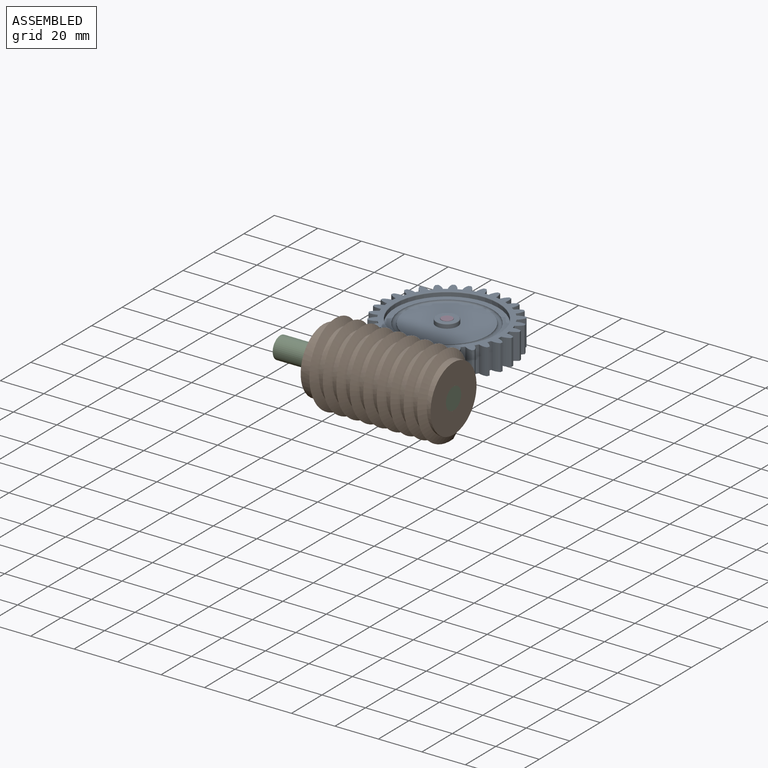
[diagram: assembled view]
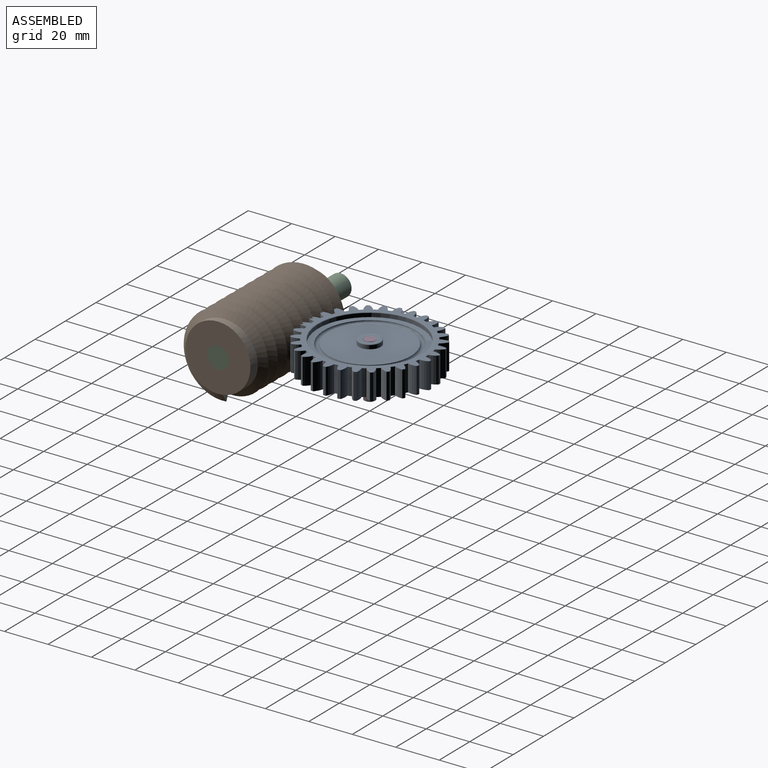
[diagram: assembled view, second angle]
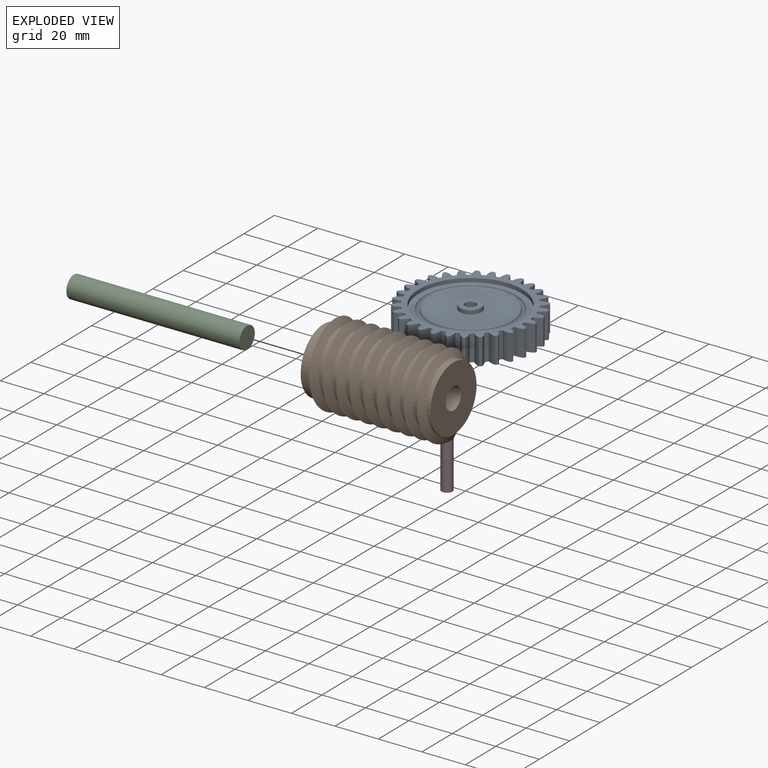
[diagram: exploded view]
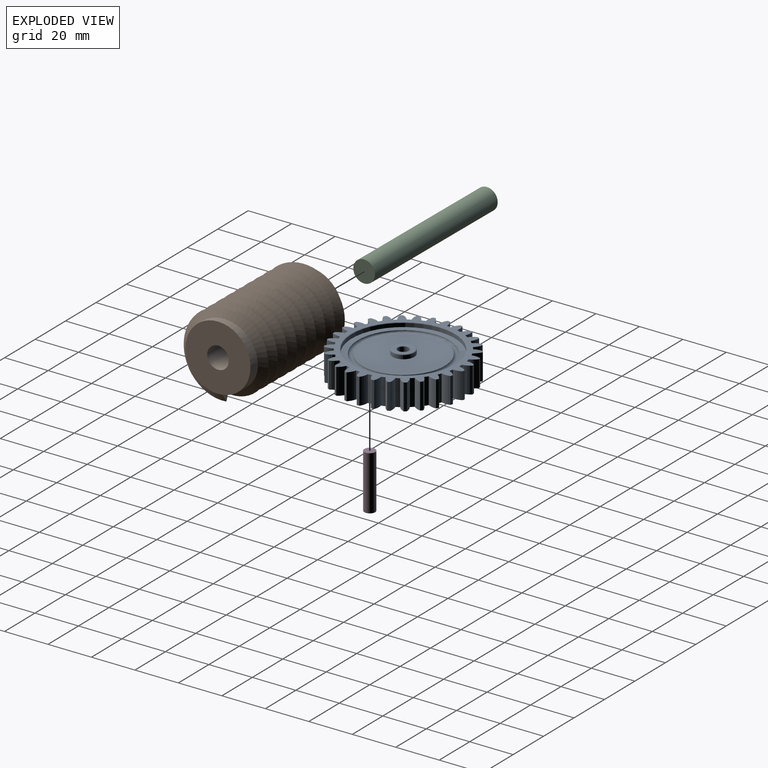
[diagram: exploded view, second angle]
ASSEMBLY  parts=4 mates=2
PART A: 141 faces, bbox 60x60x12 mm
  f0: plane 47.5x47.5mm, normal (0,0,-1), area 386.6mm2, adj f132,f140
  f1: plane 38x38mm, normal (0,0,-1), area 1055.6mm2, adj f131,f140
  f2: plane 47.5x47.5mm, normal (0,0,1), area 386.6mm2, adj f128,f139
  f3: plane 38x38mm, normal (0,0,1), area 1055.6mm2, adj f127,f139
  f4: plane 9.4x9.4mm, normal (0,0,-1), area 44.8mm2, adj f133,f135
  f5: cylinder r=26.25mm len=12mm, axis (0,0,-1), area 22.2mm2, adj f38,f39,f108,f111
  f6: cylinder r=26.25mm len=12mm, axis (0,0,-1), area 22.2mm2, adj f38,f39,f110,f114
  f7: cylinder r=26.25mm len=12mm, axis (0,0,-1), area 22.2mm2, adj f38,f39,f113,f117
  f8: cylinder r=26.25mm len=12mm, axis (0,0,-1), area 22.2mm2, adj f38,f39,f116,f120
  f9: cylinder r=26.25mm len=12mm, axis (0,0,-1), area 22.2mm2, adj f38,f39,f119,f123
  f10: cylinder r=26.25mm len=12mm, axis (0,0,-1), area 22.2mm2, adj f38,f39,f122,f126
  f11: cylinder r=26.25mm len=12mm, axis (0,0,-1), area 22.2mm2, adj f38,f39,f42,f124
  f12: cylinder r=26.25mm len=12mm, axis (0,0,-1), area 22.2mm2, adj f38,f39,f41,f45
  f13: cylinder r=26.25mm len=12mm, axis (0,0,-1), area 22.2mm2, adj f38,f39,f44,f48
  f14: cylinder r=26.25mm len=12mm, axis (0,0,-1), area 22.2mm2, adj f38,f39,f47,f51
  f15: cylinder r=26.25mm len=12mm, axis (0,0,-1), area 22.2mm2, adj f38,f39,f50,f54
  f16: cylinder r=26.25mm len=12mm, axis (0,0,-1), area 22.2mm2, adj f38,f39,f53,f57
  f17: cylinder r=26.25mm len=12mm, axis (0,0,-1), area 22.2mm2, adj f38,f39,f56,f60
  f18: cylinder r=26.25mm len=12mm, axis (0,0,-1), area 22.2mm2, adj f38,f39,f59,f63
  f19: cylinder r=26.25mm len=12mm, axis (0,0,-1), area 22.2mm2, adj f38,f39,f62,f66
  f20: cylinder r=26.25mm len=12mm, axis (0,0,-1), area 22.2mm2, adj f38,f39,f65,f69
  f21: cylinder r=26.25mm len=12mm, axis (0,0,-1), area 22.2mm2, adj f38,f39,f68,f72
  f22: cylinder r=26.25mm len=12mm, axis (0,0,-1), area 22.2mm2, adj f38,f39,f71,f75
  f23: cylinder r=26.25mm len=12mm, axis (0,0,-1), area 22.2mm2, adj f38,f39,f74,f78
  f24: cylinder r=26.25mm len=12mm, axis (0,0,-1), area 22.2mm2, adj f38,f39,f77,f81
  f25: cylinder r=26.25mm len=12mm, axis (0,0,-1), area 22.2mm2, adj f38,f39,f80,f84
  f26: cylinder r=26.25mm len=12mm, axis (0,0,-1), area 22.2mm2, adj f38,f39,f83,f87
  f27: cylinder r=26.25mm len=12mm, axis (0,0,-1), area 22.2mm2, adj f38,f39,f86,f90
  f28: cylinder r=26.25mm len=12mm, axis (0,0,-1), area 22.2mm2, adj f38,f39,f89,f93
  f29: cylinder r=26.25mm len=12mm, axis (0,0,-1), area 22.2mm2, adj f38,f39,f92,f96
  f30: cylinder r=26.25mm len=12mm, axis (0,0,-1), area 22.2mm2, adj f38,f39,f95,f99
  f31: cylinder r=26.25mm len=12mm, axis (0,0,-1), area 22.2mm2, adj f38,f39,f98,f102
  f32: cylinder r=26.25mm len=12mm, axis (0,0,-1), area 22.2mm2, adj f38,f39,f101,f105
  f33: cylinder r=26.25mm len=12mm, axis (0,0,-1), area 22.2mm2, adj f37,f38,f39,f104
  f34: cylinder r=26.25mm len=12mm, axis (0,0,-1), area 22.2mm2, adj f35,f38,f39,f107
  f35: cylinder r=7.05mm len=12mm, axis (0,0,-1), area 48.6mm2, adj f34,f36,f38,f39
  f36: cylinder r=30mm len=12mm, axis (0,0,-1), area 14.5mm2, adj f35,f37,f38,f39
  f37: cylinder r=7.05mm len=12mm, axis (0,0,-1), area 48.6mm2, adj f33,f36,f38,f39
  f38: plane 59.97x59.97mm, normal (0,0,1), area 666.9mm2, adj f5,f6,f7,f8,f9,f10,f11,f12
  f39: plane 59.97x59.97mm, normal (0,0,-1), area 666.9mm2, adj f5,f6,f7,f8,f9,f10,f11,f12
  f40: cylinder r=30mm len=12mm, axis (0,0,-1), area 14.5mm2, adj f38,f39,f41,f42
  f41: cylinder r=7.05mm len=12mm, axis (0,0,-1), area 48.6mm2, adj f12,f38,f39,f40
  f42: cylinder r=7.05mm len=12mm, axis (0,0,-1), area 48.6mm2, adj f11,f38,f39,f40
  f43: cylinder r=30mm len=12mm, axis (0,0,-1), area 14.5mm2, adj f38,f39,f44,f45
  f44: cylinder r=7.05mm len=12mm, axis (0,0,-1), area 48.6mm2, adj f13,f38,f39,f43
  f45: cylinder r=7.05mm len=12mm, axis (0,0,-1), area 48.6mm2, adj f12,f38,f39,f43
  f46: cylinder r=30mm len=12mm, axis (0,0,-1), area 14.5mm2, adj f38,f39,f47,f48
  f47: cylinder r=7.05mm len=12mm, axis (0,0,-1), area 48.6mm2, adj f14,f38,f39,f46
  f48: cylinder r=7.05mm len=12mm, axis (0,0,-1), area 48.6mm2, adj f13,f38,f39,f46
  f49: cylinder r=30mm len=12mm, axis (0,0,-1), area 14.5mm2, adj f38,f39,f50,f51
  f50: cylinder r=7.05mm len=12mm, axis (0,0,-1), area 48.6mm2, adj f15,f38,f39,f49
  f51: cylinder r=7.05mm len=12mm, axis (0,0,-1), area 48.6mm2, adj f14,f38,f39,f49
  f52: cylinder r=30mm len=12mm, axis (0,0,-1), area 14.5mm2, adj f38,f39,f53,f54
  f53: cylinder r=7.05mm len=12mm, axis (0,0,-1), area 48.6mm2, adj f16,f38,f39,f52
  f54: cylinder r=7.05mm len=12mm, axis (0,0,-1), area 48.6mm2, adj f15,f38,f39,f52
  f55: cylinder r=30mm len=12mm, axis (0,0,-1), area 14.5mm2, adj f38,f39,f56,f57
  f56: cylinder r=7.05mm len=12mm, axis (0,0,-1), area 48.6mm2, adj f17,f38,f39,f55
  f57: cylinder r=7.05mm len=12mm, axis (0,0,-1), area 48.6mm2, adj f16,f38,f39,f55
  f58: cylinder r=30mm len=12mm, axis (0,0,-1), area 14.5mm2, adj f38,f39,f59,f60
  f59: cylinder r=7.05mm len=12mm, axis (0,0,-1), area 48.6mm2, adj f18,f38,f39,f58
  f60: cylinder r=7.05mm len=12mm, axis (0,0,-1), area 48.6mm2, adj f17,f38,f39,f58
  f61: cylinder r=30mm len=12mm, axis (0,0,-1), area 14.5mm2, adj f38,f39,f62,f63
  f62: cylinder r=7.05mm len=12mm, axis (0,0,-1), area 48.6mm2, adj f19,f38,f39,f61
  f63: cylinder r=7.05mm len=12mm, axis (0,0,-1), area 48.6mm2, adj f18,f38,f39,f61
  f64: cylinder r=30mm len=12mm, axis (0,0,-1), area 14.5mm2, adj f38,f39,f65,f66
  f65: cylinder r=7.05mm len=12mm, axis (0,0,-1), area 48.6mm2, adj f20,f38,f39,f64
  f66: cylinder r=7.05mm len=12mm, axis (0,0,-1), area 48.6mm2, adj f19,f38,f39,f64
  f67: cylinder r=30mm len=12mm, axis (0,0,-1), area 14.5mm2, adj f38,f39,f68,f69
  f68: cylinder r=7.05mm len=12mm, axis (0,0,-1), area 48.6mm2, adj f21,f38,f39,f67
  f69: cylinder r=7.05mm len=12mm, axis (0,0,-1), area 48.6mm2, adj f20,f38,f39,f67
  f70: cylinder r=30mm len=12mm, axis (0,0,-1), area 14.5mm2, adj f38,f39,f71,f72
  f71: cylinder r=7.05mm len=12mm, axis (0,0,-1), area 48.6mm2, adj f22,f38,f39,f70
  f72: cylinder r=7.05mm len=12mm, axis (0,0,-1), area 48.6mm2, adj f21,f38,f39,f70
  f73: cylinder r=30mm len=12mm, axis (0,0,-1), area 14.5mm2, adj f38,f39,f74,f75
  f74: cylinder r=7.05mm len=12mm, axis (0,0,-1), area 48.6mm2, adj f23,f38,f39,f73
  f75: cylinder r=7.05mm len=12mm, axis (0,0,-1), area 48.6mm2, adj f22,f38,f39,f73
  f76: cylinder r=30mm len=12mm, axis (0,0,-1), area 14.5mm2, adj f38,f39,f77,f78
  f77: cylinder r=7.05mm len=12mm, axis (0,0,-1), area 48.6mm2, adj f24,f38,f39,f76
  f78: cylinder r=7.05mm len=12mm, axis (0,0,-1), area 48.6mm2, adj f23,f38,f39,f76
  f79: cylinder r=30mm len=12mm, axis (0,0,-1), area 14.5mm2, adj f38,f39,f80,f81
  f80: cylinder r=7.05mm len=12mm, axis (0,0,-1), area 48.6mm2, adj f25,f38,f39,f79
  f81: cylinder r=7.05mm len=12mm, axis (0,0,-1), area 48.6mm2, adj f24,f38,f39,f79
  f82: cylinder r=30mm len=12mm, axis (0,0,-1), area 14.5mm2, adj f38,f39,f83,f84
  f83: cylinder r=7.05mm len=12mm, axis (0,0,-1), area 48.6mm2, adj f26,f38,f39,f82
  f84: cylinder r=7.05mm len=12mm, axis (0,0,-1), area 48.6mm2, adj f25,f38,f39,f82
  f85: cylinder r=30mm len=12mm, axis (0,0,-1), area 14.5mm2, adj f38,f39,f86,f87
  f86: cylinder r=7.05mm len=12mm, axis (0,0,-1), area 48.6mm2, adj f27,f38,f39,f85
  f87: cylinder r=7.05mm len=12mm, axis (0,0,-1), area 48.6mm2, adj f26,f38,f39,f85
  f88: cylinder r=30mm len=12mm, axis (0,0,-1), area 14.5mm2, adj f38,f39,f89,f90
  f89: cylinder r=7.05mm len=12mm, axis (0,0,-1), area 48.6mm2, adj f28,f38,f39,f88
  f90: cylinder r=7.05mm len=12mm, axis (0,0,-1), area 48.6mm2, adj f27,f38,f39,f88
  f91: cylinder r=30mm len=12mm, axis (0,0,-1), area 14.5mm2, adj f38,f39,f92,f93
  f92: cylinder r=7.05mm len=12mm, axis (0,0,-1), area 48.6mm2, adj f29,f38,f39,f91
  f93: cylinder r=7.05mm len=12mm, axis (0,0,-1), area 48.6mm2, adj f28,f38,f39,f91
  f94: cylinder r=30mm len=12mm, axis (0,0,-1), area 14.5mm2, adj f38,f39,f95,f96
  f95: cylinder r=7.05mm len=12mm, axis (0,0,-1), area 48.6mm2, adj f30,f38,f39,f94
  f96: cylinder r=7.05mm len=12mm, axis (0,0,-1), area 48.6mm2, adj f29,f38,f39,f94
  f97: cylinder r=30mm len=12mm, axis (0,0,-1), area 14.5mm2, adj f38,f39,f98,f99
  f98: cylinder r=7.05mm len=12mm, axis (0,0,-1), area 48.6mm2, adj f31,f38,f39,f97
  f99: cylinder r=7.05mm len=12mm, axis (0,0,-1), area 48.6mm2, adj f30,f38,f39,f97
  f100: cylinder r=30mm len=12mm, axis (0,0,-1), area 14.5mm2, adj f38,f39,f101,f102
  f101: cylinder r=7.05mm len=12mm, axis (0,0,-1), area 48.6mm2, adj f32,f38,f39,f100
  f102: cylinder r=7.05mm len=12mm, axis (0,0,-1), area 48.6mm2, adj f31,f38,f39,f100
  f103: cylinder r=30mm len=12mm, axis (0,0,-1), area 14.5mm2, adj f38,f39,f104,f105
  f104: cylinder r=7.05mm len=12mm, axis (0,0,-1), area 48.6mm2, adj f33,f38,f39,f103
  f105: cylinder r=7.05mm len=12mm, axis (0,0,-1), area 48.6mm2, adj f32,f38,f39,f103
  f106: cylinder r=30mm len=12mm, axis (0,0,-1), area 14.5mm2, adj f38,f39,f107,f108
  f107: cylinder r=7.05mm len=12mm, axis (0,0,-1), area 48.6mm2, adj f34,f38,f39,f106
  f108: cylinder r=7.05mm len=12mm, axis (0,0,-1), area 48.6mm2, adj f5,f38,f39,f106
  f109: cylinder r=30mm len=12mm, axis (0,0,-1), area 14.5mm2, adj f38,f39,f110,f111
  f110: cylinder r=7.05mm len=12mm, axis (0,0,-1), area 48.6mm2, adj f6,f38,f39,f109
  f111: cylinder r=7.05mm len=12mm, axis (0,0,-1), area 48.6mm2, adj f5,f38,f39,f109
  f112: cylinder r=30mm len=12mm, axis (0,0,-1), area 14.5mm2, adj f38,f39,f113,f114
  f113: cylinder r=7.05mm len=12mm, axis (0,0,-1), area 48.6mm2, adj f7,f38,f39,f112
  f114: cylinder r=7.05mm len=12mm, axis (0,0,-1), area 48.6mm2, adj f6,f38,f39,f112
  f115: cylinder r=30mm len=12mm, axis (0,0,-1), area 14.5mm2, adj f38,f39,f116,f117
  f116: cylinder r=7.05mm len=12mm, axis (0,0,-1), area 48.6mm2, adj f8,f38,f39,f115
  f117: cylinder r=7.05mm len=12mm, axis (0,0,-1), area 48.6mm2, adj f7,f38,f39,f115
  f118: cylinder r=30mm len=12mm, axis (0,0,-1), area 14.5mm2, adj f38,f39,f119,f120
  f119: cylinder r=7.05mm len=12mm, axis (0,0,-1), area 48.6mm2, adj f9,f38,f39,f118
  f120: cylinder r=7.05mm len=12mm, axis (0,0,-1), area 48.6mm2, adj f8,f38,f39,f118
  f121: cylinder r=30mm len=12mm, axis (0,0,-1), area 14.5mm2, adj f38,f39,f122,f123
  f122: cylinder r=7.05mm len=12mm, axis (0,0,-1), area 48.6mm2, adj f10,f38,f39,f121
  f123: cylinder r=7.05mm len=12mm, axis (0,0,-1), area 48.6mm2, adj f9,f38,f39,f121
  f124: cylinder r=7.05mm len=12mm, axis (0,0,-1), area 48.6mm2, adj f11,f38,f39,f125
  f125: cylinder r=30mm len=12mm, axis (0,0,-1), area 14.5mm2, adj f38,f39,f124,f126
  f126: cylinder r=7.05mm len=12mm, axis (0,0,-1), area 48.6mm2, adj f10,f38,f39,f125
  f127: cylinder r=5mm len=10mm, axis (0,0,1), area 53.4mm2, adj f3,f137
  f128: cylinder r=23.75mm len=47.5mm, axis (0,0,1), area 253.7mm2, adj f2,f138
  f129: plane 9.4x9.4mm, normal (0,0,1), area 44.8mm2, adj f136,f137
  f130: cylinder r=2.5mm len=11.4mm, axis (0,0,1), area 179.1mm2, adj f135,f136
  f131: cylinder r=5mm len=10mm, axis (0,0,-1), area 53.4mm2, adj f1,f133
  f132: cylinder r=23.75mm len=47.5mm, axis (0,0,-1), area 253.7mm2, adj f0,f134
  f133: torus R=4.7mm, axis (0,0,1), area 14.5mm2, adj f4,f131
  f134: torus R=24.05mm, axis (0,0,1), area 70.6mm2, adj f39,f132
  f135: torus R=2.8mm, axis (0,0,1), area 7.7mm2, adj f4,f130
  f136: torus R=2.8mm, axis (0,0,1), area 7.7mm2, adj f129,f130
  f137: torus R=4.7mm, axis (0,0,1), area 14.5mm2, adj f127,f129
  f138: torus R=24.05mm, axis (0,0,1), area 70.6mm2, adj f38,f128
  f139: torus R=20mm, axis (0,0,1), area 394.8mm2, adj f2,f3
  f140: torus R=20mm, axis (0,0,1), area 394.8mm2, adj f0,f1
PART B: 8 faces, bbox 36.9x42.6x60 mm
  f0: cylinder r=5mm len=60mm, axis (0,0,-1), area 1885mm2, adj f2,f3
  f1: cylinder r=15mm len=60mm, axis (0,0,-1), area 2319.5mm2, adj f2,f3,f4,f5,f6,f7
  f2: plane 30x30mm, normal (0,0,1), area 628.3mm2, adj f0,f1
  f3: plane 30x30mm, normal (0,0,-1), area 628.3mm2, adj f0,f1
  f4: plane 4x3.46mm, normal (0,-1,0), area 6.9mm2, adj f1,f6,f7
  f5: plane 4x3.46mm, normal (0,1,0), area 6.9mm2, adj f1,f6,f7
  f6: bspline ~58x42.64mm, area 3804.6mm2, adj f1,f4,f5,f7
  f7: bspline ~58x42.64mm, area 3804.6mm2, adj f1,f4,f5,f6
PART C: 3 faces, bbox 10x10x80 mm
  f0: cylinder r=5mm len=80mm, axis (0,0,-1), area 2513.3mm2, adj f1,f2
  f1: plane 10x10mm, normal (0,0,1), area 78.5mm2, adj f0
  f2: plane 10x10mm, normal (0,0,-1), area 78.5mm2, adj f0
PART D: 3 faces, bbox 5x5x25 mm
  f0: cylinder r=2.5mm len=25mm, axis (0,0,-1), area 392.7mm2, adj f1,f2
  f1: plane 5x5mm, normal (0,0,1), area 19.6mm2, adj f0
  f2: plane 5x5mm, normal (0,0,-1), area 19.6mm2, adj f0
PLACE A rot(axis=(0,0,-1),104.7deg) t=(-43.83,-6.66,-5.63)mm
PLACE B rot(axis=(-0.71,-0.05,0.7),174.3deg) t=(-9.27,-105.43,-7.62)mm
PLACE C rot(axis=(0.68,-0.3,-0.67),147.3deg) t=(-9.4,-109.39,20.12)mm fixed
PLACE D t=(16.68,-6.66,-18.63)mm fixed
MATE revolute C.f0 <-> B.f0  axis (1,-0.01,0) through (-9,-52.09,-0.29)mm
MATE revolute D.f0 <-> A.f130  axis (0,0,1) through (-43.83,-6.66,6.37)mm
